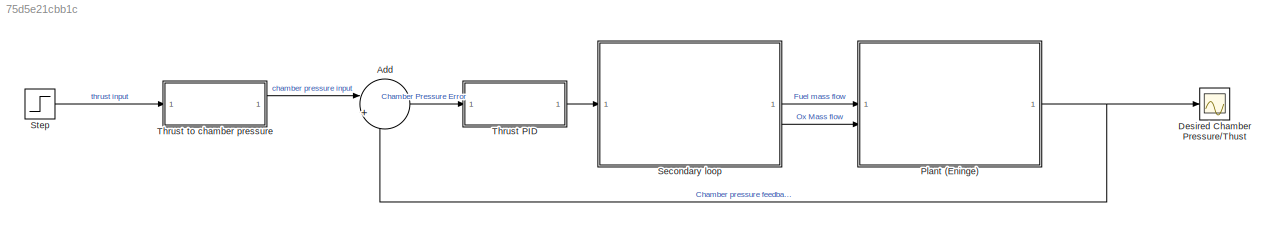
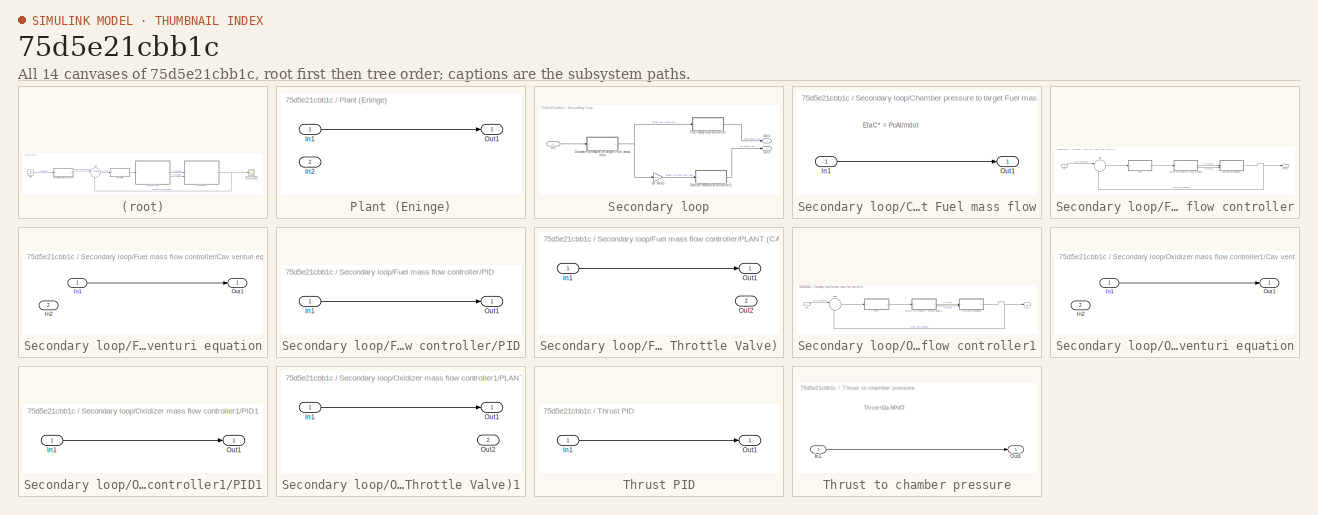
[diagram: thumbnail index - all 14 canvases of the model, root first then tree order]
MODEL slx_75d5e21cbb1c
KIND model
CONFIG AbsTol = auto
CONFIG EnableMultiTasking = off
CONFIG FixedStep = auto
CONFIG MaxStep = auto
CONFIG MinStep = auto
CONFIG RelTol = 1e-3
CONFIG SampleTimeConstraint = Unconstrained
CONFIG SolverName = VariableStepAuto
CONFIG StartTime = 0.0
CONFIG StopTime = 10.0
BLOCK [Sum] Add
  Inputs = |+-
BLOCK [Scope] Desired Chamber Pressure//Thust
  Floating = off
  NumInputPorts = 1
  ScopeSpecificationString = Simulink.scopes.TimeScopeBlockCfg('CurrentConfiguration', extmgr.ConfigurationSet(extmgr.Configuration('Core','General UI',true),extmgr.Configuration('Core','Source UI',true),extmgr.Configuration('Sources','WiredSimulink',true),extmgr.Configuration('Visuals','Time Domain',true),extmgr.Configuration('Tools','Plot Navigation',true),extmgr.Configuration('Tools','Measurements',true)),'Version','2023b'...<+1ch>
BLOCK [SubSystem] Plant (Eninge)
BLOCK [Inport] Plant (Eninge)/In1
BLOCK [Inport] Plant (Eninge)/In2
  Port = 2
BLOCK [Outport] Plant (Eninge)/Out1
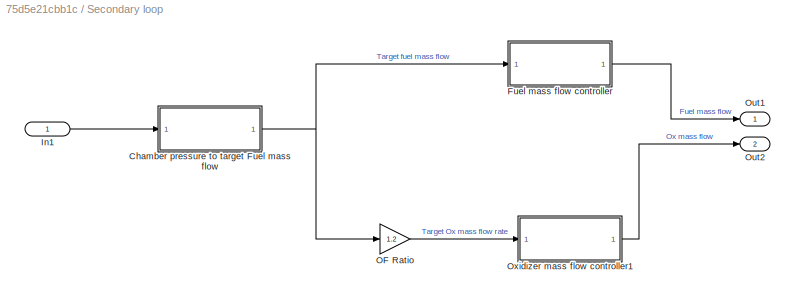
BLOCK [SubSystem] Secondary loop
BLOCK [SubSystem] Secondary loop/Chamber pressure to target Fuel mass flow
BLOCK [Inport] Secondary loop/Chamber pressure to target Fuel mass flow/In1
BLOCK [Outport] Secondary loop/Chamber pressure to target Fuel mass flow/Out1
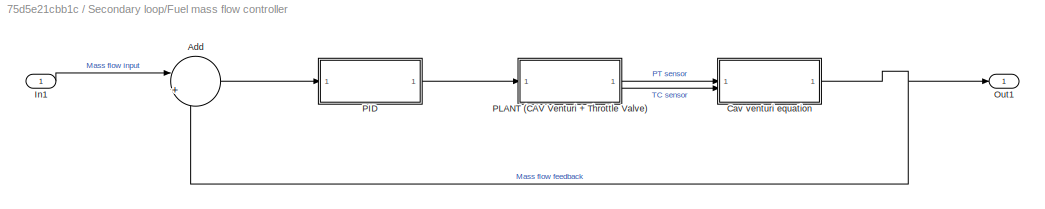
BLOCK [SubSystem] Secondary loop/Fuel mass flow controller
BLOCK [Sum] Secondary loop/Fuel mass flow controller/Add
  Inputs = |+-
BLOCK [SubSystem] Secondary loop/Fuel mass flow controller/Cav venturi equation
BLOCK [Inport] Secondary loop/Fuel mass flow controller/Cav venturi equation/In1
BLOCK [Inport] Secondary loop/Fuel mass flow controller/Cav venturi equation/In2
  Port = 2
BLOCK [Outport] Secondary loop/Fuel mass flow controller/Cav venturi equation/Out1
BLOCK [Inport] Secondary loop/Fuel mass flow controller/In1
BLOCK [Outport] Secondary loop/Fuel mass flow controller/Out1
BLOCK [SubSystem] Secondary loop/Fuel mass flow controller/PID
BLOCK [Inport] Secondary loop/Fuel mass flow controller/PID/In1
BLOCK [Outport] Secondary loop/Fuel mass flow controller/PID/Out1
BLOCK [SubSystem] Secondary loop/Fuel mass flow controller/PLANT (CAV Venturi + Throttle Valve)
BLOCK [Inport] Secondary loop/Fuel mass flow controller/PLANT (CAV Venturi + Throttle Valve)/In1
BLOCK [Outport] Secondary loop/Fuel mass flow controller/PLANT (CAV Venturi + Throttle Valve)/Out1
BLOCK [Outport] Secondary loop/Fuel mass flow controller/PLANT (CAV Venturi + Throttle Valve)/Out2
  Port = 2
BLOCK [Inport] Secondary loop/In1
BLOCK [Gain] Secondary loop/OF Ratio
  Gain = 1.2
BLOCK [Outport] Secondary loop/Out1
BLOCK [Outport] Secondary loop/Out2
  Port = 2
BLOCK [SubSystem] Secondary loop/Oxidizer mass flow controller1
BLOCK [Sum] Secondary loop/Oxidizer mass flow controller1/Add1
  Inputs = |+-
BLOCK [SubSystem] Secondary loop/Oxidizer mass flow controller1/Cav venturi equation
BLOCK [Inport] Secondary loop/Oxidizer mass flow controller1/Cav venturi equation/In1
BLOCK [Inport] Secondary loop/Oxidizer mass flow controller1/Cav venturi equation/In2
  Port = 2
BLOCK [Outport] Secondary loop/Oxidizer mass flow controller1/Cav venturi equation/Out1
BLOCK [Inport] Secondary loop/Oxidizer mass flow controller1/In1
BLOCK [Outport] Secondary loop/Oxidizer mass flow controller1/Out1
BLOCK [SubSystem] Secondary loop/Oxidizer mass flow controller1/PID1
BLOCK [Inport] Secondary loop/Oxidizer mass flow controller1/PID1/In1
BLOCK [Outport] Secondary loop/Oxidizer mass flow controller1/PID1/Out1
BLOCK [SubSystem] Secondary loop/Oxidizer mass flow controller1/PLANT (CAV Venturi + Throttle Valve)1
BLOCK [Inport] Secondary loop/Oxidizer mass flow controller1/PLANT (CAV Venturi + Throttle Valve)1/In1
BLOCK [Outport] Secondary loop/Oxidizer mass flow controller1/PLANT (CAV Venturi + Throttle Valve)1/Out1
BLOCK [Outport] Secondary loop/Oxidizer mass flow controller1/PLANT (CAV Venturi + Throttle Valve)1/Out2
  Port = 2
BLOCK [Step] Step
  SampleTime = 0
BLOCK [SubSystem] Thrust PID
BLOCK [Inport] Thrust PID/In1
BLOCK [Outport] Thrust PID/Out1
BLOCK [SubSystem] Thrust to chamber pressure
BLOCK [Inport] Thrust to chamber pressure/In1
BLOCK [Outport] Thrust to chamber pressure/Out1
ANNOTATION Secondary loop/Chamber pressure to target Fuel mass flow: EtaC* = PcAt/mdot
ANNOTATION Thrust to chamber pressure: Thrust =Eta AtPc/Cf
LINE Add:1 -> Thrust PID:1
LINE Plant (Eninge)/In1:1 -> Plant (Eninge)/Out1:1
NET Plant (Eninge):1 -> Add:2, Desired Chamber Pressure//Thust:1
LINE Secondary loop/Chamber pressure to target Fuel mass flow/In1:1 -> Secondary loop/Chamber pressure to target Fuel mass flow/Out1:1
NET Secondary loop/Chamber pressure to target Fuel mass flow:1 -> Secondary loop/Fuel mass flow controller:1, Secondary loop/OF Ratio:1
LINE Secondary loop/Fuel mass flow controller/Add:1 -> Secondary loop/Fuel mass flow controller/PID:1
LINE Secondary loop/Fuel mass flow controller/Cav venturi equation/In1:1 -> Secondary loop/Fuel mass flow controller/Cav venturi equation/Out1:1
NET Secondary loop/Fuel mass flow controller/Cav venturi equation:1 -> Secondary loop/Fuel mass flow controller/Add:2, Secondary loop/Fuel mass flow controller/Out1:1
LINE Secondary loop/Fuel mass flow controller/In1:1 -> Secondary loop/Fuel mass flow controller/Add:1
LINE Secondary loop/Fuel mass flow controller/PID/In1:1 -> Secondary loop/Fuel mass flow controller/PID/Out1:1
LINE Secondary loop/Fuel mass flow controller/PID:1 -> Secondary loop/Fuel mass flow controller/PLANT (CAV Venturi + Throttle Valve):1
LINE Secondary loop/Fuel mass flow controller/PLANT (CAV Venturi + Throttle Valve)/In1:1 -> Secondary loop/Fuel mass flow controller/PLANT (CAV Venturi + Throttle Valve)/Out1:1
LINE Secondary loop/Fuel mass flow controller/PLANT (CAV Venturi + Throttle Valve):1 -> Secondary loop/Fuel mass flow controller/Cav venturi equation:1
LINE Secondary loop/Fuel mass flow controller/PLANT (CAV Venturi + Throttle Valve):2 -> Secondary loop/Fuel mass flow controller/Cav venturi equation:2
LINE Secondary loop/Fuel mass flow controller:1 -> Secondary loop/Out1:1
LINE Secondary loop/In1:1 -> Secondary loop/Chamber pressure to target Fuel mass flow:1
LINE Secondary loop/OF Ratio:1 -> Secondary loop/Oxidizer mass flow controller1:1
LINE Secondary loop/Oxidizer mass flow controller1/Add1:1 -> Secondary loop/Oxidizer mass flow controller1/PID1:1
LINE Secondary loop/Oxidizer mass flow controller1/Cav venturi equation/In1:1 -> Secondary loop/Oxidizer mass flow controller1/Cav venturi equation/Out1:1
NET Secondary loop/Oxidizer mass flow controller1/Cav venturi equation:1 -> Secondary loop/Oxidizer mass flow controller1/Add1:2, Secondary loop/Oxidizer mass flow controller1/Out1:1
LINE Secondary loop/Oxidizer mass flow controller1/In1:1 -> Secondary loop/Oxidizer mass flow controller1/Add1:1
LINE Secondary loop/Oxidizer mass flow controller1/PID1/In1:1 -> Secondary loop/Oxidizer mass flow controller1/PID1/Out1:1
LINE Secondary loop/Oxidizer mass flow controller1/PID1:1 -> Secondary loop/Oxidizer mass flow controller1/PLANT (CAV Venturi + Throttle Valve)1:1
LINE Secondary loop/Oxidizer mass flow controller1/PLANT (CAV Venturi + Throttle Valve)1/In1:1 -> Secondary loop/Oxidizer mass flow controller1/PLANT (CAV Venturi + Throttle Valve)1/Out1:1
LINE Secondary loop/Oxidizer mass flow controller1/PLANT (CAV Venturi + Throttle Valve)1:1 -> Secondary loop/Oxidizer mass flow controller1/Cav venturi equation:1
LINE Secondary loop/Oxidizer mass flow controller1/PLANT (CAV Venturi + Throttle Valve)1:2 -> Secondary loop/Oxidizer mass flow controller1/Cav venturi equation:2
LINE Secondary loop/Oxidizer mass flow controller1:1 -> Secondary loop/Out2:1
LINE Secondary loop:1 -> Plant (Eninge):1
LINE Secondary loop:2 -> Plant (Eninge):2
LINE Step:1 -> Thrust to chamber pressure:1
LINE Thrust PID/In1:1 -> Thrust PID/Out1:1
LINE Thrust PID:1 -> Secondary loop:1
LINE Thrust to chamber pressure/In1:1 -> Thrust to chamber pressure/Out1:1
LINE Thrust to chamber pressure:1 -> Add:1
note: NET lines group one-source signal fan-out (src -> all destinations, sorted); 1:1 wires keep LINE
